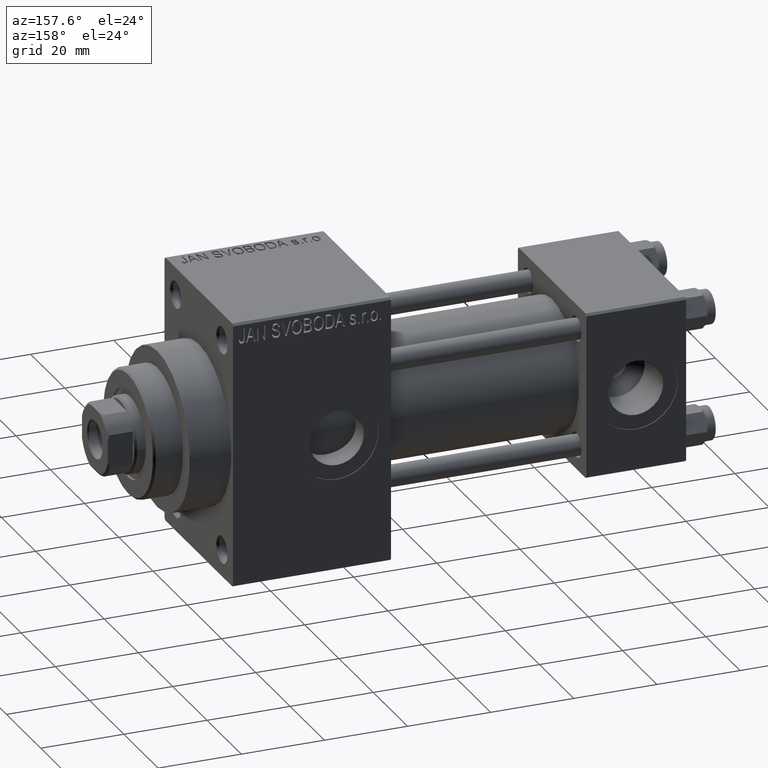
[diagram: clean part render]
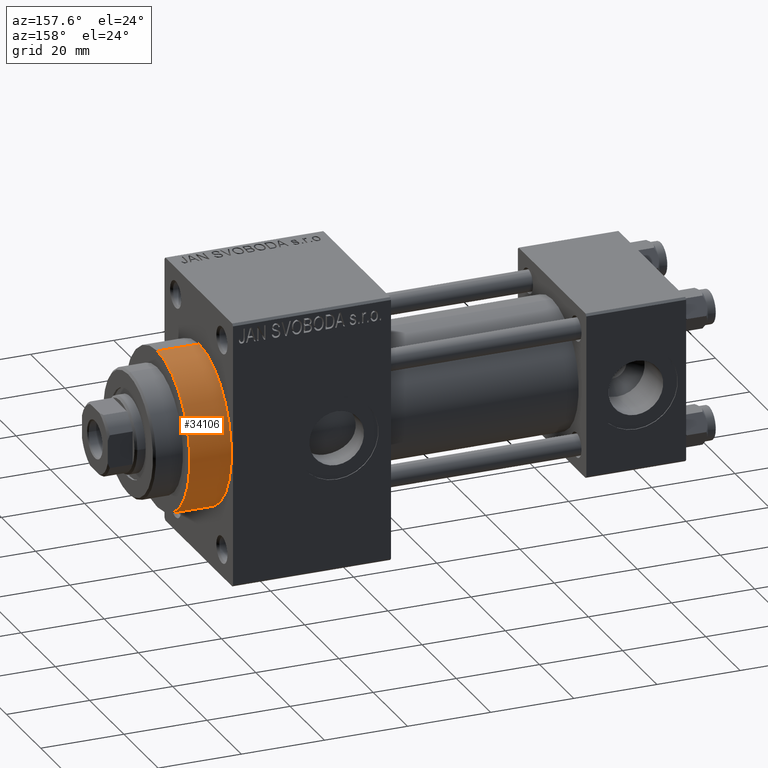
[diagram: same view with one face highlighted and labeled with its STEP entity id]
A machine part, auxiliary view. The second image highlights one B-rep face of the part: STEP entity #34106.
In plain terms, the highlighted cylindrical surface (partial cylindrical patch) has radius 19 mm, axis along (-1, -0, -0).
Its self-contained STEP definition (entity closure, byte-faithful):
#680 = AXIS2_PLACEMENT_3D ( 'NONE', #39350, #16681, #18975 ) ;
#4917 = DIRECTION ( 'NONE',  ( 0.000000000000000000, 0.000000000000000000, 1.000000000000000000 ) ) ;
#5716 = CARTESIAN_POINT ( 'NONE',  ( 119.0000000000000142, 2.326828918379970970E-15, -19.00000000000000000 ) ) ;
#6656 = DIRECTION ( 'NONE',  ( -1.000000000000000000, -0.000000000000000000, -0.000000000000000000 ) ) ;
#7109 = CARTESIAN_POINT ( 'NONE',  ( 119.0000000000000142, 2.326828918379970970E-15, -19.00000000000000000 ) ) ;
#10138 = VECTOR ( 'NONE', #24165, 1000.000000000000000 ) ;
#12288 = VERTEX_POINT ( 'NONE', #29040 ) ;
#13225 = EDGE_CURVE ( 'NONE', #39583, #12288, #14017, .T. ) ;
#13742 = EDGE_CURVE ( 'NONE', #30453, #12288, #22523, .T. ) ;
#14017 = LINE ( 'NONE', #29046, #24913 ) ;
#14841 = ORIENTED_EDGE ( 'NONE', *, *, #13742, .T. ) ;
#15612 = AXIS2_PLACEMENT_3D ( 'NONE', #23853, #38402, #4917 ) ;
#16681 = DIRECTION ( 'NONE',  ( 1.000000000000000000, 0.000000000000000000, 0.000000000000000000 ) ) ;
#17871 = CARTESIAN_POINT ( 'NONE',  ( 119.0000000000000142, 0.000000000000000000, 19.00000000000000000 ) ) ;
#18094 = ORIENTED_EDGE ( 'NONE', *, *, #20684, .F. ) ;
#18975 = DIRECTION ( 'NONE',  ( 0.000000000000000000, 0.000000000000000000, -1.000000000000000000 ) ) ;
#20684 = EDGE_CURVE ( 'NONE', #42292, #39583, #26603, .T. ) ;
#22523 = CIRCLE ( 'NONE', #35128, 19.00000000000000000 ) ;
#23853 = CARTESIAN_POINT ( 'NONE',  ( 119.0000000000000142, 0.000000000000000000, 0.000000000000000000 ) ) ;
#24165 = DIRECTION ( 'NONE',  ( -1.000000000000000000, -0.000000000000000000, -0.000000000000000000 ) ) ;
#24268 = ORIENTED_EDGE ( 'NONE', *, *, #34640, .T. ) ;
#24913 = VECTOR ( 'NONE', #6656, 1000.000000000000000 ) ;
#26603 = CIRCLE ( 'NONE', #680, 19.00000000000000000 ) ;
#27875 = LINE ( 'NONE', #5716, #10138 ) ;
#29040 = CARTESIAN_POINT ( 'NONE',  ( 109.0000000000000142, 0.000000000000000000, 19.00000000000000000 ) ) ;
#29046 = CARTESIAN_POINT ( 'NONE',  ( 119.0000000000000142, 0.000000000000000000, 19.00000000000000000 ) ) ;
#29176 = ORIENTED_EDGE ( 'NONE', *, *, #13225, .F. ) ;
#30453 = VERTEX_POINT ( 'NONE', #31917 ) ;
#31917 = CARTESIAN_POINT ( 'NONE',  ( 109.0000000000000142, 2.326828918379970970E-15, -19.00000000000000000 ) ) ;
#31980 = CYLINDRICAL_SURFACE ( 'NONE', #15612, 19.00000000000000000 ) ;
#32629 = CARTESIAN_POINT ( 'NONE',  ( 109.0000000000000142, 0.000000000000000000, 0.000000000000000000 ) ) ;
#34106 = ADVANCED_FACE ( 'NONE', ( #38644 ), #31980, .T. ) ;
#34640 = EDGE_CURVE ( 'NONE', #42292, #30453, #27875, .T. ) ;
#35128 = AXIS2_PLACEMENT_3D ( 'NONE', #32629, #47658, #40256 ) ;
#36939 = EDGE_LOOP ( 'NONE', ( #18094, #24268, #14841, #29176 ) ) ;
#38402 = DIRECTION ( 'NONE',  ( -1.000000000000000000, -0.000000000000000000, -0.000000000000000000 ) ) ;
#38644 = FACE_OUTER_BOUND ( 'NONE', #36939, .T. ) ;
#39350 = CARTESIAN_POINT ( 'NONE',  ( 119.0000000000000142, 0.000000000000000000, 0.000000000000000000 ) ) ;
#39583 = VERTEX_POINT ( 'NONE', #17871 ) ;
#40256 = DIRECTION ( 'NONE',  ( 0.000000000000000000, 0.000000000000000000, -1.000000000000000000 ) ) ;
#42292 = VERTEX_POINT ( 'NONE', #7109 ) ;
#47658 = DIRECTION ( 'NONE',  ( 1.000000000000000000, 0.000000000000000000, 0.000000000000000000 ) ) ;